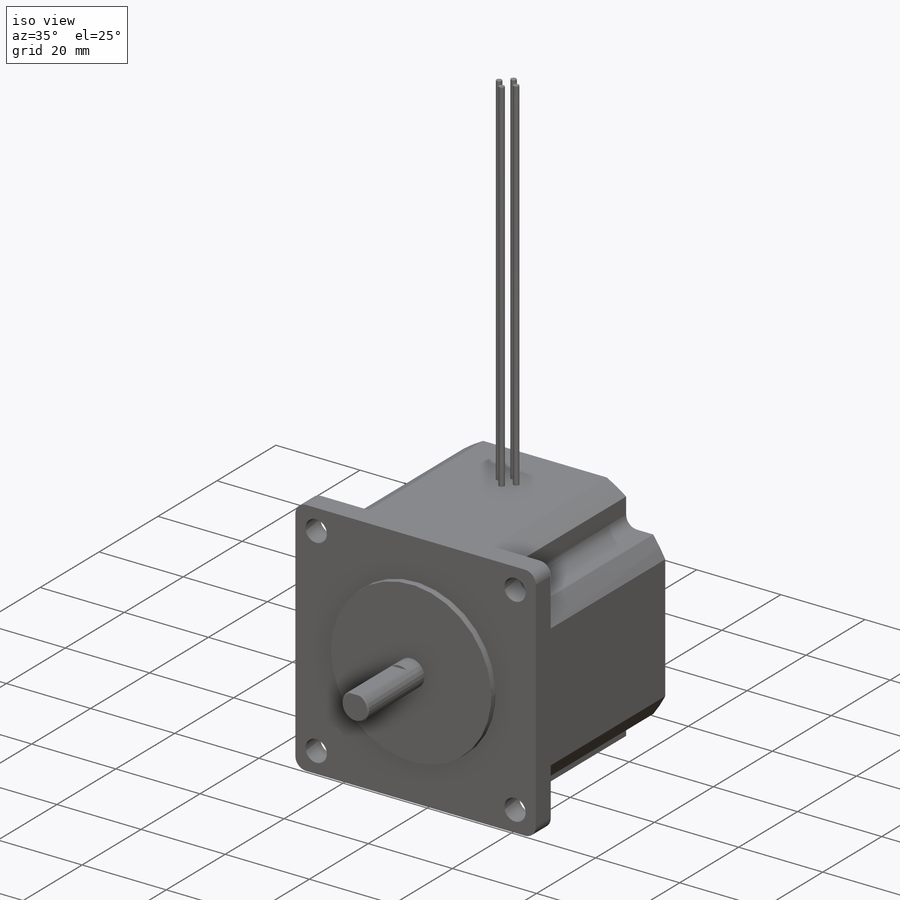
[diagram: iso view]
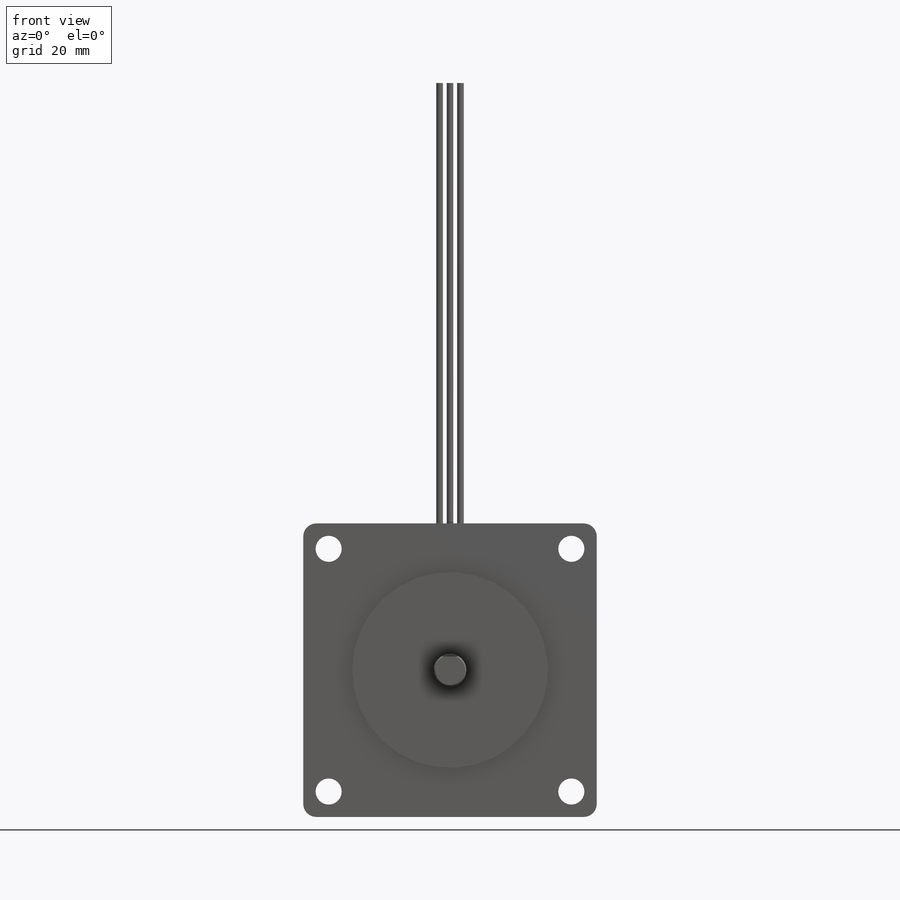
[diagram: front view]
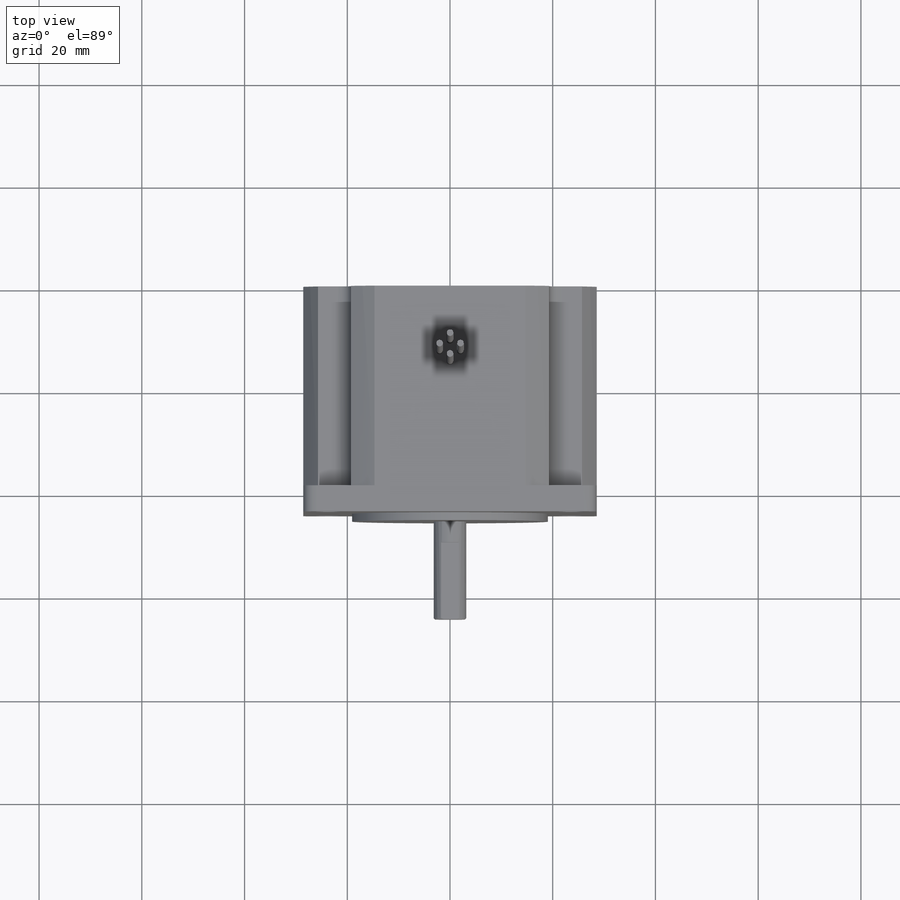
[diagram: top view]
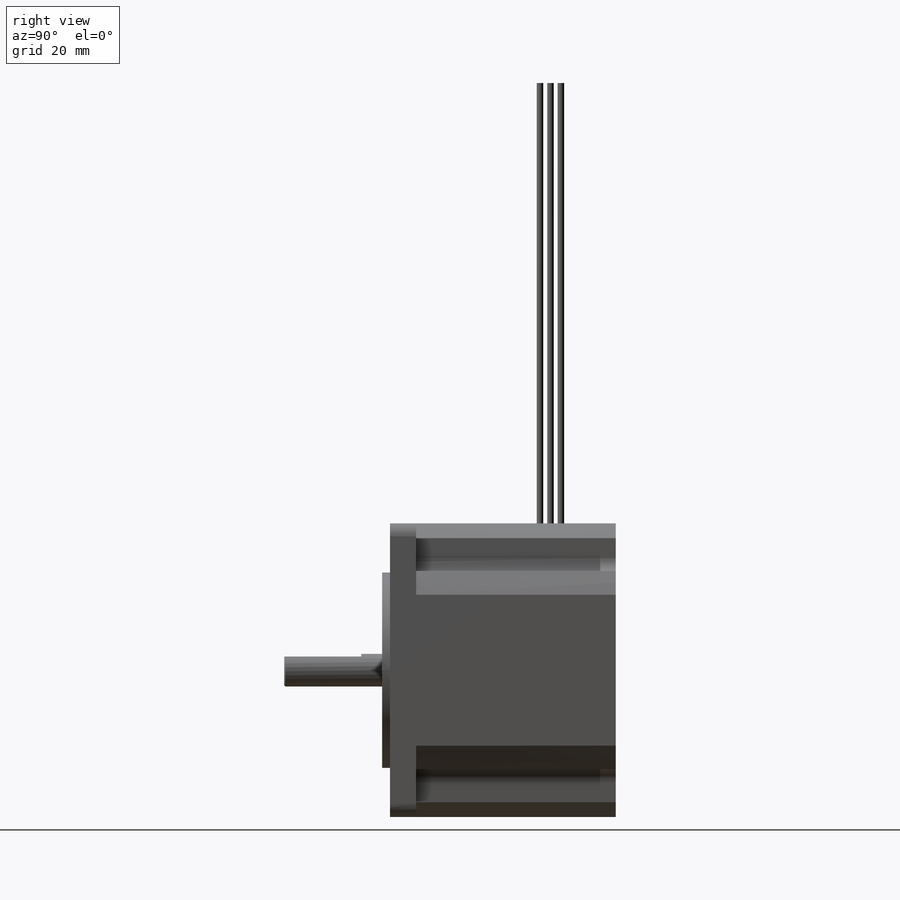
[diagram: right view]
SOLIDWORKS PART (.sldprt)
format: sldprt  version: not decoded by parser v0  size: 355,840 bytes
history: native  units: mm
features: sketch x18, cut_extrude x9, plane x7, revolve x4, extrude x3, material x1, hole x1, chamfer x1, fillet x1 (+8 scaffold rows collapsed)
feature tree (53):
  scaffold x8  (default folders/planes/origin — collapsed)
  material  "Matériau <non spécifié>"
  plane  "Plan de face"
  plane  "Plan de dessus"
  plane  "Plan de droite"
  plane  "Plan1"  Offset=43.942mm
  sketch  "Esquisse1"
  extrude  "Boss.-Extru.1"  Depth=43.942mm
  sketch  "Esquisse2"
  cut_extrude  "Enlèv. mat.-Extru.1"  Depth=38.862mm
  sketch  "Esquisse3"
  cut_extrude  "Enlèv. mat.-Extru.2"  Depth=38.862mm
  sketch  "Esquisse4"
  cut_extrude  "Enlèv. mat.-Extru.3"  Depth=38.862mm
  sketch  "Esquisse5"
  cut_extrude  "Enlèv. mat.-Extru.4"  Depth=38.862mm
  sketch  "Esquisse6"
  cut_extrude  "Enlèv. mat.-Extru.5"  Depth=38.862mm
  sketch  "Esquisse7"
  cut_extrude  "Enlèv. mat.-Extru.6"  Depth=38.862mm
  sketch  "Esquisse8"
  cut_extrude  "Enlèv. mat.-Extru.7"  Depth=38.862mm
  sketch  "Esquisse9"
  cut_extrude  "Enlèv. mat.-Extru.8"  Depth=38.862mm
  sketch  "Esquisse10"
  extrude  "Boss.-Extru.2"  Depth=1.524mm
  sketch  "Esquisse11"
  extrude  "Boss.-Extru.3"  Depth=19.05mm
  sketch  "Esquisse12"
  cut_extrude  "Enlèv. mat.-Extru.9"  Depth=14.986mm
  plane  "Plan2"
  sketch  "Esquisse13"
  revolve  "Révolution1"  Angle=360deg
  sketch  "Esquisse14"
  revolve  "Révolution2"  Angle=360deg
  plane  "Plan3"  Offset=2.032mm
  sketch  "Esquisse15"
  revolve  "Révolution3"  Angle=360deg
  plane  "Plan4"  Offset=2.032mm
  sketch  "Esquisse16"
  revolve  "Révolution4"  Angle=360deg
  hole  "Perçage1"  Diameter=5.08mm Depth=25.654mm
  sketch  "Esquisse18"
  sketch  "Esquisse17"  dims[Diamètre=5.08mm Profondeur=25.654mm]
  chamfer  "Chanfrein1"  Distance=0.254mm Angle=45deg
  fillet  "Congé1"  Radius=2.54mm
decode coverage: 20 of 37 modeling features carry decoded parameters
note: suppression state not decoded; provenance and decode notes live in map.json
